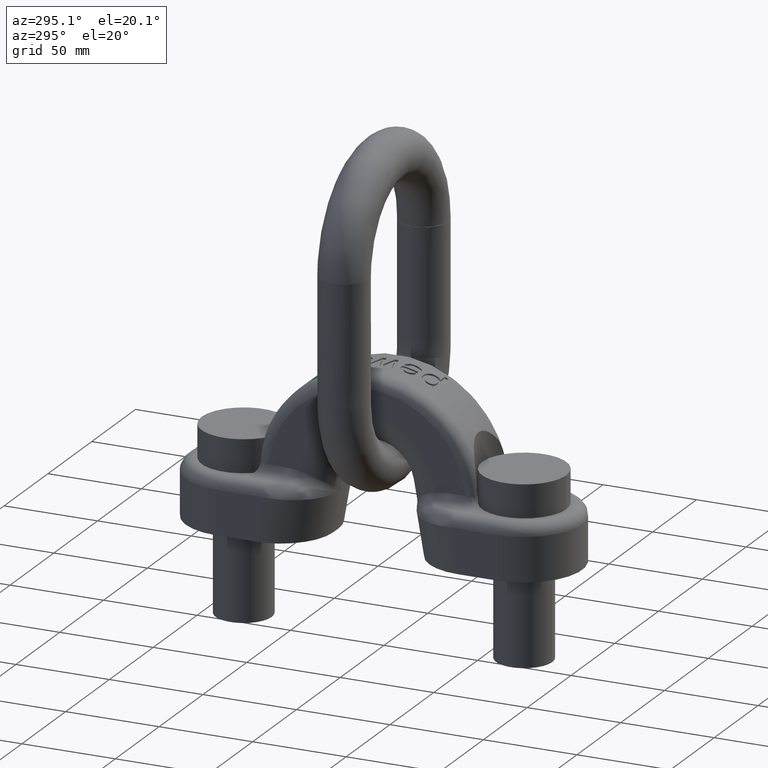
[diagram: clean part render]
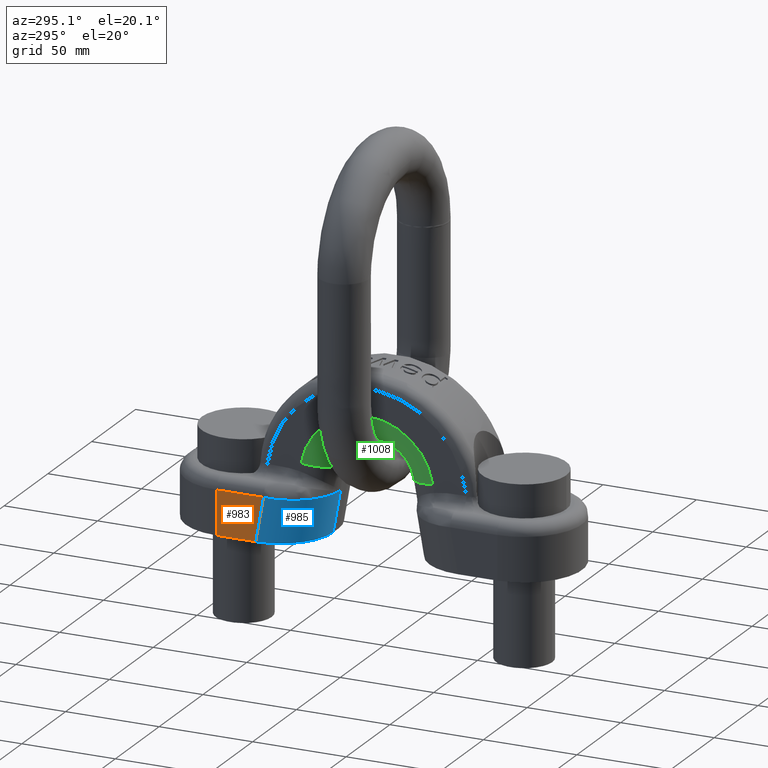
[diagram: same view with three faces highlighted in distinct colors, each labeled with its STEP entity id]
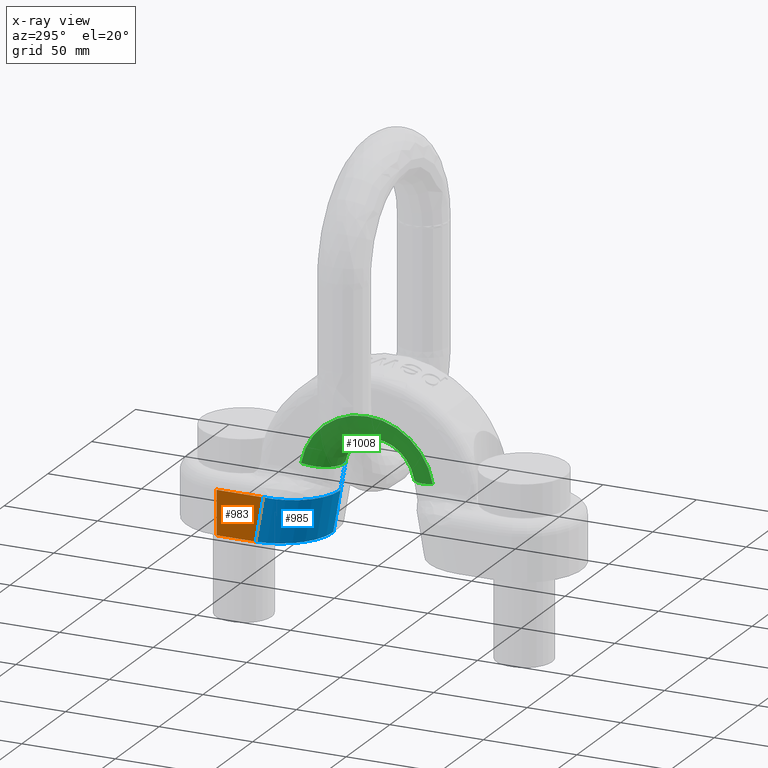
[diagram: x-ray of the same camera — body ghosted, the three highlighted faces saturated]
A machine part, auxiliary view with three faces highlighted in distinct colors.
The next image is the same camera in x-ray (body ghosted, the three faces saturated) — at least one of them is partly hidden behind the body in this view.
Their STEP definitions:

[orange] entity #983 — the highlighted planar face has unit normal (1, 0, 0).
#743=PLANE('',#3556);
#835=FACE_OUTER_BOUND('',#1552,.T.);
#983=ADVANCED_FACE('',(#835),#743,.F.);
#1191=LINE('',#5113,#1317);
#1192=LINE('',#5116,#1318);
#1193=LINE('',#5118,#1319);
#1194=LINE('',#5120,#1320);
#1317=VECTOR('',#3800,1.);
#1318=VECTOR('',#3801,1.);
#1319=VECTOR('',#3802,1.);
#1320=VECTOR('',#3803,1.);
#1552=EDGE_LOOP('',(#2132,#2133,#2134,#2135));
#2132=ORIENTED_EDGE('',*,*,#3190,.T.);
#2133=ORIENTED_EDGE('',*,*,#3191,.T.);
#2134=ORIENTED_EDGE('',*,*,#3192,.T.);
#2135=ORIENTED_EDGE('',*,*,#3193,.T.);
#2924=VERTEX_POINT('',#5114);
#2925=VERTEX_POINT('',#5115);
#2926=VERTEX_POINT('',#5117);
#2927=VERTEX_POINT('',#5119);
#3190=EDGE_CURVE('',#2924,#2925,#1191,.T.);
#3191=EDGE_CURVE('',#2925,#2926,#1192,.T.);
#3192=EDGE_CURVE('',#2926,#2927,#1193,.T.);
#3193=EDGE_CURVE('',#2927,#2924,#1194,.T.);
#3556=AXIS2_PLACEMENT_3D('',#5121,#3804,#3805);
#3800=DIRECTION('',(0.,-0.17364817766693,0.984807753012208));
#3801=DIRECTION('',(0.,1.,4.52536558950471E-16));
#3802=DIRECTION('',(0.,0.,-1.));
#3803=DIRECTION('',(0.,-1.,0.));
#3804=DIRECTION('',(1.,0.,0.));
#3805=DIRECTION('',(0.,0.,-1.));
#5113=CARTESIAN_POINT('',(-31.,46.6798874927787,41.7309236214125));
#5114=CARTESIAN_POINT('',(-31.,54.0381752571179,0.));
#5115=CARTESIAN_POINT('',(-31.,49.894491210469,23.5));
#5116=CARTESIAN_POINT('',(-31.,75.0000000000001,23.5));
#5117=CARTESIAN_POINT('',(-31.,75.,23.5));
#5118=CARTESIAN_POINT('',(-31.,75.,183.));
#5119=CARTESIAN_POINT('',(-31.,75.,0.));
#5120=CARTESIAN_POINT('',(-31.,75.,0.));
#5121=CARTESIAN_POINT('',(-31.,75.,183.));

[blue] entity #985 — the highlighted cylindrical surface (partial cylindrical patch) has radius 27.9 mm, axis along (0, -0.1736, 0.9848).
#837=FACE_OUTER_BOUND('',#1554,.T.);
#985=ADVANCED_FACE('',(#837),#1150,.T.);
#1150=CYLINDRICAL_SURFACE('',#3561,27.9);
#1191=LINE('',#5113,#1317);
#1199=LINE('',#5131,#1325);
#1200=LINE('',#5137,#1326);
#1317=VECTOR('',#3800,1.);
#1325=VECTOR('',#3812,1.);
#1326=VECTOR('',#3817,1.);
#1554=EDGE_LOOP('',(#2140,#2141,#2142,#2143,#2144,#2145));
#1978=CIRCLE('',#3560,27.9);
#2140=ORIENTED_EDGE('',*,*,#3198,.T.);
#2141=ORIENTED_EDGE('',*,*,#3199,.T.);
#2142=ORIENTED_EDGE('',*,*,#3190,.F.);
#2143=ORIENTED_EDGE('',*,*,#3200,.F.);
#2144=ORIENTED_EDGE('',*,*,#3201,.F.);
#2145=ORIENTED_EDGE('',*,*,#3202,.F.);
#2924=VERTEX_POINT('',#5114);
#2925=VERTEX_POINT('',#5115);
#2932=VERTEX_POINT('',#5132);
#2933=VERTEX_POINT('',#5133);
#2934=VERTEX_POINT('',#5136);
#2935=VERTEX_POINT('',#5138);
#3190=EDGE_CURVE('',#2924,#2925,#1191,.T.);
#3198=EDGE_CURVE('',#2932,#2933,#1199,.T.);
#3199=EDGE_CURVE('',#2933,#2925,#3510,.T.);
#3200=EDGE_CURVE('',#2934,#2924,#3511,.T.);
#3201=EDGE_CURVE('',#2935,#2934,#1200,.T.);
#3202=EDGE_CURVE('',#2932,#2935,#1978,.T.);
#3510=ELLIPSE('',#3558,28.1540144178665,27.9);
#3511=ELLIPSE('',#3559,28.3304024716123,27.9);
#3558=AXIS2_PLACEMENT_3D('',#5134,#3813,#3814);
#3559=AXIS2_PLACEMENT_3D('',#5135,#3815,#3816);
#3560=AXIS2_PLACEMENT_3D('',#5139,#3818,#3819);
#3561=AXIS2_PLACEMENT_3D('',#5140,#3820,#3821);
#3800=DIRECTION('',(0.,-0.17364817766693,0.984807753012208));
#3812=DIRECTION('',(0.,0.17364817766693,-0.984807753012208));
#3813=DIRECTION('',(0.,0.0400906648012078,-0.999196046126983));
#3814=DIRECTION('',(0.,-0.999196046126984,-0.0400906648012078));
#3815=DIRECTION('',(0.,0.,-1.));
#3816=DIRECTION('',(0.,-1.,0.));
#3817=DIRECTION('',(0.,0.17364817766693,-0.984807753012208));
#3818=DIRECTION('',(0.,-0.17364817766693,0.984807753012208));
#3819=DIRECTION('',(0.,-0.984807753012208,-0.17364817766693));
#3820=DIRECTION('',(0.,-0.17364817766693,0.984807753012208));
#3821=DIRECTION('',(0.,-0.984807753012208,-0.17364817766693));
#5113=CARTESIAN_POINT('',(-31.,46.6798874927787,41.7309236214125));
#5114=CARTESIAN_POINT('',(-31.,54.0381752571179,0.));
#5115=CARTESIAN_POINT('',(-31.,49.894491210469,23.5));
#5131=CARTESIAN_POINT('',(-3.45922746781115,25.7100503691444,0.000401599446337754));
#5132=CARTESIAN_POINT('',(-3.45922746781115,19.2060287673768,36.8865410639515));
#5133=CARTESIAN_POINT('',(-3.45922746781115,21.7654432203814,22.3713804077599));
#5134=CARTESIAN_POINT('',(-3.10000000000001,49.894491210469,23.5));
#5135=CARTESIAN_POINT('',(-3.10000000000001,54.0381752571179,0.));
#5136=CARTESIAN_POINT('',(-3.10000000000001,25.7077727855056,-3.19280617167644E-15));
#5137=CARTESIAN_POINT('',(-3.10000000000001,25.7077727855056,-3.7102434878602E-15));
#5138=CARTESIAN_POINT('',(-3.10000000000001,19.2037511837381,36.8861394645051));
#5139=CARTESIAN_POINT('',(-3.1,46.6798874927787,41.7309236214125));
#5140=CARTESIAN_POINT('',(-3.10000000000001,53.1839090945462,4.84478415690735));

[green] entity #1008 — the highlighted toroidal blend (fillet) surface has major radius 35.751 mm and minor (blend) radius 16.25 mm.
#828=TOROIDAL_SURFACE('',#3615,35.7509657052612,16.25);
#856=FACE_OUTER_BOUND('',#1581,.T.);
#1008=ADVANCED_FACE('',(#856),#828,.T.);
#1581=EDGE_LOOP('',(#2260,#2261,#2262,#2263));
#1980=CIRCLE('',#3563,19.5023127190376);
#1999=CIRCLE('',#3605,35.7509657052612);
#2002=CIRCLE('',#3612,16.25);
#2003=CIRCLE('',#3614,16.25);
#2260=ORIENTED_EDGE('',*,*,#3271,.T.);
#2261=ORIENTED_EDGE('',*,*,#3204,.F.);
#2262=ORIENTED_EDGE('',*,*,#3272,.F.);
#2263=ORIENTED_EDGE('',*,*,#3265,.F.);
#2932=VERTEX_POINT('',#5132);
#2936=VERTEX_POINT('',#5142);
#2974=VERTEX_POINT('',#5269);
#2979=VERTEX_POINT('',#5289);
#3204=EDGE_CURVE('',#2936,#2932,#1980,.T.);
#3265=EDGE_CURVE('',#2979,#2974,#1999,.T.);
#3271=EDGE_CURVE('',#2979,#2932,#2002,.T.);
#3272=EDGE_CURVE('',#2974,#2936,#2003,.T.);
#3563=AXIS2_PLACEMENT_3D('',#5144,#3824,#3825);
#3605=AXIS2_PLACEMENT_3D('',#5290,#3938,#3939);
#3612=AXIS2_PLACEMENT_3D('',#5317,#3952,#3953);
#3614=AXIS2_PLACEMENT_3D('',#5319,#3956,#3957);
#3615=AXIS2_PLACEMENT_3D('',#5320,#3958,#3959);
#3824=DIRECTION('',(-1.,0.,0.));
#3825=DIRECTION('',(0.,0.,-1.));
#3938=DIRECTION('',(1.,0.,0.));
#3939=DIRECTION('',(0.,0.,1.));
#3952=DIRECTION('',(0.,-0.173648177666931,0.984807753012208));
#3953=DIRECTION('',(0.,-0.984807753012208,-0.173648177666931));
#3956=DIRECTION('',(0.,-0.17364817766693,-0.984807753012208));
#3957=DIRECTION('',(0.,0.984807753012208,-0.17364817766693));
#3958=DIRECTION('',(1.,0.,0.));
#3959=DIRECTION('',(0.,0.,-1.));
#5132=CARTESIAN_POINT('',(-3.45922746781115,19.2060287673768,36.8865410639515));
#5142=CARTESIAN_POINT('',(-3.45922746781115,-19.2060287673768,36.8865410639515));
#5144=CARTESIAN_POINT('',(-3.45922746781115,0.,33.5));
#5269=CARTESIAN_POINT('',(-19.5,-35.2078282042148,39.7080900445515));
#5289=CARTESIAN_POINT('',(-19.5,35.2078282042148,39.7080900445515));
#5290=CARTESIAN_POINT('',(-19.5,0.,33.5));
#5317=CARTESIAN_POINT('',(-3.25,35.2078282042148,39.7080900445515));
#5319=CARTESIAN_POINT('',(-3.25,-35.2078282042148,39.7080900445515));
#5320=CARTESIAN_POINT('',(-3.25,0.,33.5));